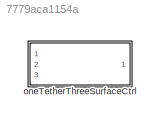
MODEL slx_7779aca1154a
KIND library
CONFIG AbsTol = auto
CONFIG EnableMultiTasking = off
CONFIG FixedStep = auto
CONFIG MaxStep = auto
CONFIG MinStep = auto
CONFIG RelTol = 1e-3
CONFIG SampleTimeConstraint = Unconstrained
CONFIG Solver = VariableStepAuto
CONFIG SolverName = VariableStepAuto
CONFIG StartTime = 0.0
CONFIG StopTime = 10.0
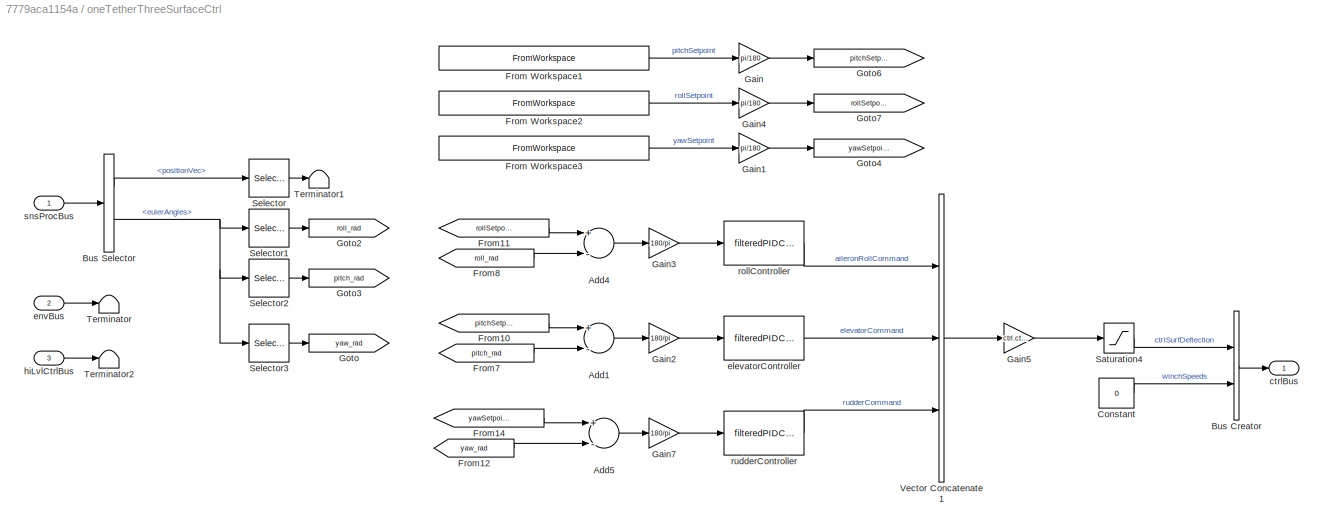
BLOCK [SubSystem] oneTetherThreeSurfaceCtrl
  InitFcn = initializeBussesFromBlock(gcb)
  LoadFcn = initializeBussesFromBlock(gcb)
  Ports = [3, 1]
  RequestExecContextInheritance = off
  StartFcn = initializeBussesFromBlock(gcb)
  VariantControl = VSS_controller_oneTetherThreeSurfaceCtrl
BLOCK [Sum] oneTetherThreeSurfaceCtrl/Add1
  InputSameDT = off
  Inputs = +-
  OutDataTypeStr = Inherit: Inherit via internal rule
  Ports = [2, 1]
  SaturateOnIntegerOverflow = off
BLOCK [Sum] oneTetherThreeSurfaceCtrl/Add4
  InputSameDT = off
  Inputs = +-
  OutDataTypeStr = Inherit: Inherit via internal rule
  Ports = [2, 1]
  SaturateOnIntegerOverflow = off
BLOCK [Sum] oneTetherThreeSurfaceCtrl/Add5
  InputSameDT = off
  Inputs = +-
  OutDataTypeStr = Inherit: Inherit via internal rule
  Ports = [2, 1]
  SaturateOnIntegerOverflow = off
BLOCK [BusCreator] oneTetherThreeSurfaceCtrl/Bus Creator
  DisplayOption = bar
  InheritFromInputs = on
  Inputs = 2
  OutDataTypeStr = Bus: fltCtrlBus
  Ports = [2, 1]
BLOCK [BusSelector] oneTetherThreeSurfaceCtrl/Bus Selector
  OutputAsBus = off
  OutputSignals = positionVec,eulerAngles
  Ports = [1, 2]
BLOCK [Constant] oneTetherThreeSurfaceCtrl/Constant
  Value = 0
BLOCK [FromWorkspace] oneTetherThreeSurfaceCtrl/From Workspace1
  SampleTime = 0
  VariableName = ctrl.pitchSP.Value
  ZeroCross = on
BLOCK [FromWorkspace] oneTetherThreeSurfaceCtrl/From Workspace2
  SampleTime = 0
  VariableName = ctrl.rollSP.Value
  ZeroCross = on
BLOCK [FromWorkspace] oneTetherThreeSurfaceCtrl/From Workspace3
  SampleTime = 0
  VariableName = ctrl.yawSP.Value
  ZeroCross = on
BLOCK [From] oneTetherThreeSurfaceCtrl/From10
  GotoTag = pitchSetpoint_rad
BLOCK [From] oneTetherThreeSurfaceCtrl/From11
  GotoTag = rollSetpoint_rad
BLOCK [From] oneTetherThreeSurfaceCtrl/From12
  GotoTag = yaw_rad
BLOCK [From] oneTetherThreeSurfaceCtrl/From14
  GotoTag = yawSetpoint_rad
BLOCK [From] oneTetherThreeSurfaceCtrl/From7
  GotoTag = pitch_rad
BLOCK [From] oneTetherThreeSurfaceCtrl/From8
  GotoTag = roll_rad
BLOCK [Gain] oneTetherThreeSurfaceCtrl/Gain
  Gain = pi/180
  OutDataTypeStr = Inherit: Inherit via internal rule
  ParamDataTypeStr = Inherit: Inherit via internal rule
  SaturateOnIntegerOverflow = off
BLOCK [Gain] oneTetherThreeSurfaceCtrl/Gain1
  Gain = pi/180
  OutDataTypeStr = Inherit: Inherit via internal rule
  ParamDataTypeStr = Inherit: Inherit via internal rule
  SaturateOnIntegerOverflow = off
BLOCK [Gain] oneTetherThreeSurfaceCtrl/Gain2
  Gain = 180/pi
  OutDataTypeStr = Inherit: Inherit via internal rule
  ParamDataTypeStr = Inherit: Inherit via internal rule
  SaturateOnIntegerOverflow = off
BLOCK [Gain] oneTetherThreeSurfaceCtrl/Gain3
  Gain = 180/pi
  OutDataTypeStr = Inherit: Inherit via internal rule
  ParamDataTypeStr = Inherit: Inherit via internal rule
  SaturateOnIntegerOverflow = off
BLOCK [Gain] oneTetherThreeSurfaceCtrl/Gain4
  Gain = pi/180
  OutDataTypeStr = Inherit: Inherit via internal rule
  ParamDataTypeStr = Inherit: Inherit via internal rule
  SaturateOnIntegerOverflow = off
BLOCK [Gain] oneTetherThreeSurfaceCtrl/Gain5
  Gain = ctrl.ctrlSurfAllocationMat.Value
  Multiplication = Matrix(K*u)
  OutDataTypeStr = Inherit: Inherit via internal rule
  ParamDataTypeStr = Inherit: Inherit via internal rule
  SaturateOnIntegerOverflow = off
BLOCK [Gain] oneTetherThreeSurfaceCtrl/Gain7
  Gain = 180/pi
  OutDataTypeStr = Inherit: Inherit via internal rule
  ParamDataTypeStr = Inherit: Inherit via internal rule
  SaturateOnIntegerOverflow = off
BLOCK [Goto] oneTetherThreeSurfaceCtrl/Goto
  GotoTag = yaw_rad
BLOCK [Goto] oneTetherThreeSurfaceCtrl/Goto2
  GotoTag = roll_rad
BLOCK [Goto] oneTetherThreeSurfaceCtrl/Goto3
  GotoTag = pitch_rad
BLOCK [Goto] oneTetherThreeSurfaceCtrl/Goto4
  GotoTag = yawSetpoint_rad
BLOCK [Goto] oneTetherThreeSurfaceCtrl/Goto6
  GotoTag = pitchSetpoint_rad
BLOCK [Goto] oneTetherThreeSurfaceCtrl/Goto7
  GotoTag = rollSetpoint_rad
BLOCK [Saturate] oneTetherThreeSurfaceCtrl/Saturation4
  InputPortMap = u0
  LowerLimit = ctrl.outputSat.lowerLimit.Value
  Ports = [1, 1]
  UpperLimit = ctrl.outputSat.upperLimit.Value
BLOCK [Selector] oneTetherThreeSurfaceCtrl/Selector
  IndexOptions = Index vector (dialog)
  Indices = 3
  InputPortWidth = 3
  OutputSizes = 1
  Ports = [1, 1]
BLOCK [Selector] oneTetherThreeSurfaceCtrl/Selector1
  IndexOptions = Index vector (dialog)
  Indices = 1
  InputPortWidth = 3
  OutputSizes = 1
  Ports = [1, 1]
BLOCK [Selector] oneTetherThreeSurfaceCtrl/Selector2
  IndexOptions = Index vector (dialog)
  Indices = 2
  InputPortWidth = 3
  OutputSizes = 1
  Ports = [1, 1]
BLOCK [Selector] oneTetherThreeSurfaceCtrl/Selector3
  IndexOptions = Index vector (dialog)
  Indices = 3
  InputPortWidth = 3
  OutputSizes = 1
  Ports = [1, 1]
BLOCK [Terminator] oneTetherThreeSurfaceCtrl/Terminator
BLOCK [Terminator] oneTetherThreeSurfaceCtrl/Terminator1
BLOCK [Terminator] oneTetherThreeSurfaceCtrl/Terminator2
BLOCK [Concatenate] oneTetherThreeSurfaceCtrl/Vector Concatenate1
  NumInputs = 3
  Ports = [3, 1]
BLOCK [Outport] oneTetherThreeSurfaceCtrl/ctrlBus
  IconDisplay = Port number
  OutDataTypeStr = Bus: fltCtrlBus
BLOCK [Reference] oneTetherThreeSurfaceCtrl/elevatorController  REF=filteredPIDController_ul/filteredPIDController
  Ports = [1, 1]
  SourceBlock = filteredPIDController_ul/filteredPIDController
BLOCK [Inport] oneTetherThreeSurfaceCtrl/envBus
  IconDisplay = Port number
  OutDataTypeStr = Bus: envBus
  Port = 2
BLOCK [Inport] oneTetherThreeSurfaceCtrl/hiLvlCtrlBus
  IconDisplay = Port number
  OutDataTypeStr = Bus: hiLvlCtrlBus
  Port = 3
BLOCK [Reference] oneTetherThreeSurfaceCtrl/rollController  REF=filteredPIDController_ul/filteredPIDController
  Ports = [1, 1]
  SourceBlock = filteredPIDController_ul/filteredPIDController
BLOCK [Reference] oneTetherThreeSurfaceCtrl/rudderController  REF=filteredPIDController_ul/filteredPIDController
  Ports = [1, 1]
  SourceBlock = filteredPIDController_ul/filteredPIDController
BLOCK [Inport] oneTetherThreeSurfaceCtrl/snsProcBus
  IconDisplay = Port number
  OutDataTypeStr = Bus: sensorsProcessingBus
LINE oneTetherThreeSurfaceCtrl/Add1:1 -> oneTetherThreeSurfaceCtrl/Gain2:1
LINE oneTetherThreeSurfaceCtrl/Add4:1 -> oneTetherThreeSurfaceCtrl/Gain3:1
LINE oneTetherThreeSurfaceCtrl/Add5:1 -> oneTetherThreeSurfaceCtrl/Gain7:1
LINE oneTetherThreeSurfaceCtrl/Bus Creator:1 -> oneTetherThreeSurfaceCtrl/ctrlBus:1
LINE oneTetherThreeSurfaceCtrl/Bus Selector:1 -> oneTetherThreeSurfaceCtrl/Selector:1
NET oneTetherThreeSurfaceCtrl/Bus Selector:2 -> oneTetherThreeSurfaceCtrl/Selector1:1, oneTetherThreeSurfaceCtrl/Selector2:1, oneTetherThreeSurfaceCtrl/Selector3:1
LINE oneTetherThreeSurfaceCtrl/Constant:1 -> oneTetherThreeSurfaceCtrl/Bus Creator:2
LINE oneTetherThreeSurfaceCtrl/From Workspace1:1 -> oneTetherThreeSurfaceCtrl/Gain:1
LINE oneTetherThreeSurfaceCtrl/From Workspace2:1 -> oneTetherThreeSurfaceCtrl/Gain4:1
LINE oneTetherThreeSurfaceCtrl/From Workspace3:1 -> oneTetherThreeSurfaceCtrl/Gain1:1
LINE oneTetherThreeSurfaceCtrl/From10:1 -> oneTetherThreeSurfaceCtrl/Add1:1
LINE oneTetherThreeSurfaceCtrl/From11:1 -> oneTetherThreeSurfaceCtrl/Add4:1
LINE oneTetherThreeSurfaceCtrl/From12:1 -> oneTetherThreeSurfaceCtrl/Add5:2
LINE oneTetherThreeSurfaceCtrl/From14:1 -> oneTetherThreeSurfaceCtrl/Add5:1
LINE oneTetherThreeSurfaceCtrl/From7:1 -> oneTetherThreeSurfaceCtrl/Add1:2
LINE oneTetherThreeSurfaceCtrl/From8:1 -> oneTetherThreeSurfaceCtrl/Add4:2
LINE oneTetherThreeSurfaceCtrl/Gain1:1 -> oneTetherThreeSurfaceCtrl/Goto4:1
LINE oneTetherThreeSurfaceCtrl/Gain2:1 -> oneTetherThreeSurfaceCtrl/elevatorController:1
LINE oneTetherThreeSurfaceCtrl/Gain3:1 -> oneTetherThreeSurfaceCtrl/rollController:1
LINE oneTetherThreeSurfaceCtrl/Gain4:1 -> oneTetherThreeSurfaceCtrl/Goto7:1
LINE oneTetherThreeSurfaceCtrl/Gain5:1 -> oneTetherThreeSurfaceCtrl/Saturation4:1
LINE oneTetherThreeSurfaceCtrl/Gain7:1 -> oneTetherThreeSurfaceCtrl/rudderController:1
LINE oneTetherThreeSurfaceCtrl/Gain:1 -> oneTetherThreeSurfaceCtrl/Goto6:1
LINE oneTetherThreeSurfaceCtrl/Saturation4:1 -> oneTetherThreeSurfaceCtrl/Bus Creator:1
LINE oneTetherThreeSurfaceCtrl/Selector1:1 -> oneTetherThreeSurfaceCtrl/Goto2:1
LINE oneTetherThreeSurfaceCtrl/Selector2:1 -> oneTetherThreeSurfaceCtrl/Goto3:1
LINE oneTetherThreeSurfaceCtrl/Selector3:1 -> oneTetherThreeSurfaceCtrl/Goto:1
LINE oneTetherThreeSurfaceCtrl/Selector:1 -> oneTetherThreeSurfaceCtrl/Terminator1:1
LINE oneTetherThreeSurfaceCtrl/Vector Concatenate1:1 -> oneTetherThreeSurfaceCtrl/Gain5:1
LINE oneTetherThreeSurfaceCtrl/elevatorController:1 -> oneTetherThreeSurfaceCtrl/Vector Concatenate1:2
LINE oneTetherThreeSurfaceCtrl/envBus:1 -> oneTetherThreeSurfaceCtrl/Terminator:1
LINE oneTetherThreeSurfaceCtrl/hiLvlCtrlBus:1 -> oneTetherThreeSurfaceCtrl/Terminator2:1
LINE oneTetherThreeSurfaceCtrl/rollController:1 -> oneTetherThreeSurfaceCtrl/Vector Concatenate1:1
LINE oneTetherThreeSurfaceCtrl/rudderController:1 -> oneTetherThreeSurfaceCtrl/Vector Concatenate1:3
LINE oneTetherThreeSurfaceCtrl/snsProcBus:1 -> oneTetherThreeSurfaceCtrl/Bus Selector:1
note: NET lines group one-source signal fan-out (src -> all destinations, sorted); 1:1 wires keep LINE
